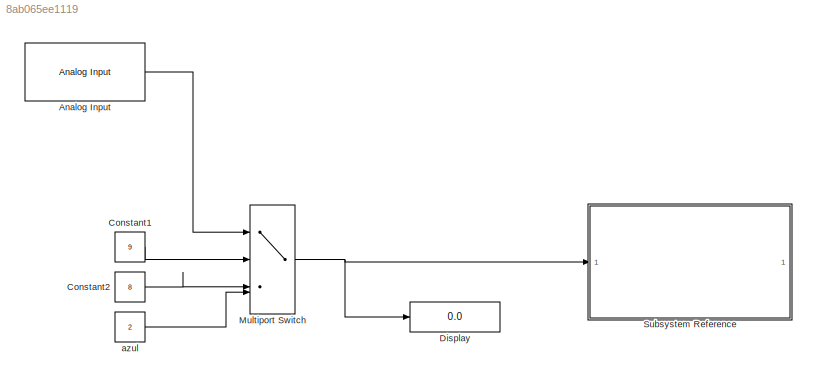
MODEL slx_8ab065ee1119
KIND model
CONFIG AbsTol = auto
CONFIG EnableMultiTasking = off
CONFIG FixedStep = auto
CONFIG MaxStep = auto
CONFIG MinStep = auto
CONFIG RelTol = 1e-3
CONFIG SampleTimeConstraint = Unconstrained
CONFIG SolverName = VariableStepAuto
CONFIG StartTime = 0.0
CONFIG StopTime = 10.0
BLOCK [Reference] Analog Input  REF=arduinolib/Analog Input
  SourceBlock = arduinolib/Analog Input
  SourceType = Arduino Analog Input
BLOCK [Constant] Constant1
  Value = 9
BLOCK [Constant] Constant2
  Value = 8
BLOCK [Display] Display
  Decimation = 1
BLOCK [MultiPortSwitch] Multiport Switch
  DataPortIndices = {100,110,112}
  DataPortOrder = Specify indices
  InputSameDT = off
  SaturateOnIntegerOverflow = off
BLOCK [SubSystem] Subsystem Reference
  ReferencedSubsystem = subsysLED
BLOCK [Constant] azul
  Value = 2
LINE Analog Input:1 -> Multiport Switch:1
LINE Constant1:1 -> Multiport Switch:2
LINE Constant2:1 -> Multiport Switch:3
NET Multiport Switch:1 -> Display:1, Subsystem Reference:1
LINE azul:1 -> Multiport Switch:4
note: NET lines group one-source signal fan-out (src -> all destinations, sorted); 1:1 wires keep LINE
